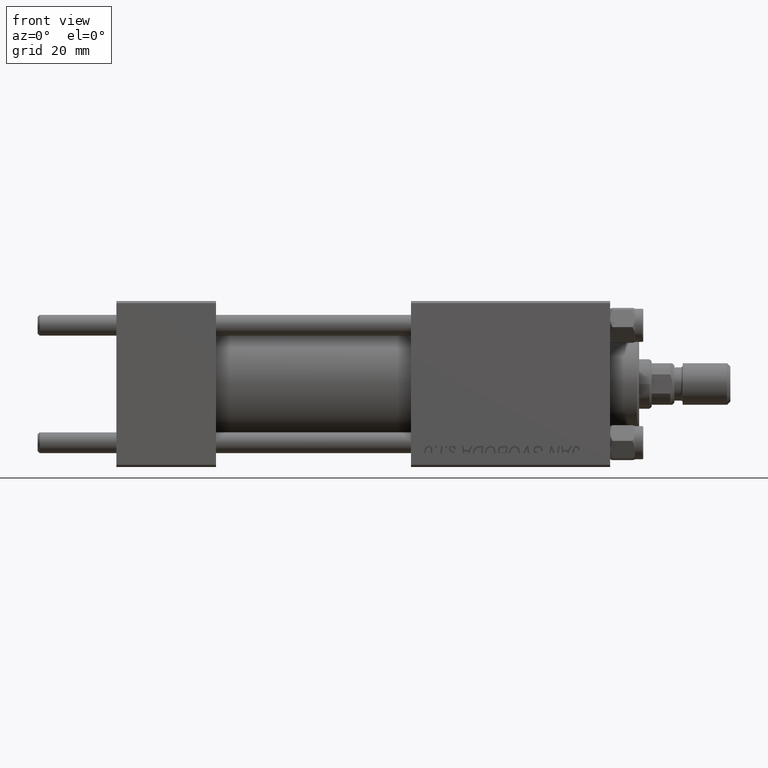
[diagram: clean part render]
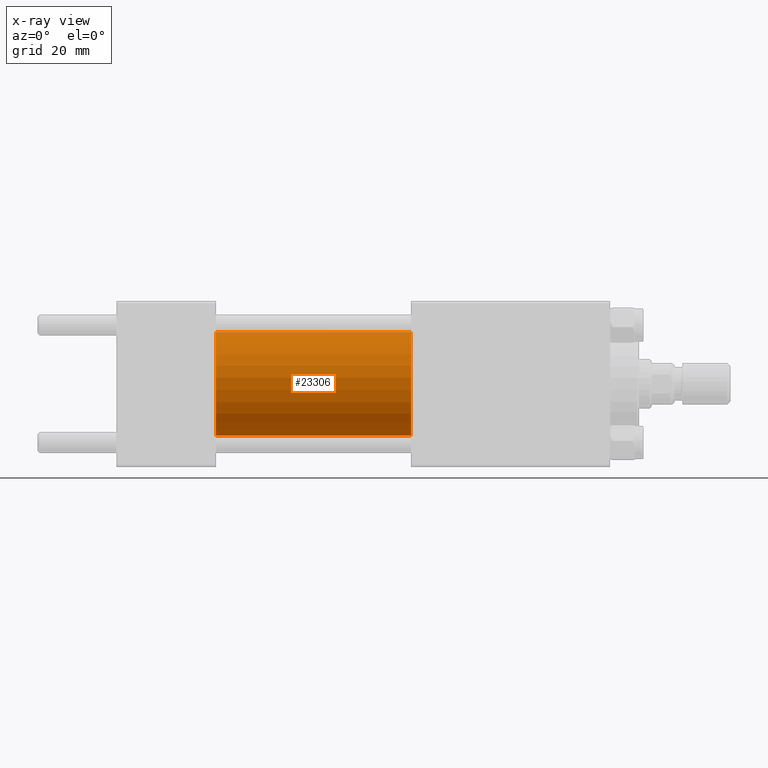
[diagram: x-ray — body ghosted, one internal face saturated and labeled with its STEP entity id]
A machine part, front view, then the same camera in x-ray: the body is ghosted and one INTERNAL B-rep face — a face not visible from any outside direction — is saturated and labeled: STEP entity #23306.
In plain terms, the highlighted cylindrical surface (partial cylindrical patch) has radius 12.5 mm, axis along (-1, -0, -0).
Its self-contained STEP definition (entity closure, byte-faithful):
#1 = ORIENTED_EDGE ( 'NONE', *, *, #14204, .T. ) ;
#2363 = DIRECTION ( 'NONE',  ( 0.000000000000000000, 0.000000000000000000, -1.000000000000000000 ) ) ;
#3590 = CARTESIAN_POINT ( 'NONE',  ( 71.00000000000001421, 1.530808498934191127E-15, -12.49999999999999645 ) ) ;
#6319 = CIRCLE ( 'NONE', #20940, 12.49999999999999645 ) ;
#7600 = LINE ( 'NONE', #23155, #33865 ) ;
#14204 = EDGE_CURVE ( 'NONE', #43999, #25536, #47696, .T. ) ;
#16356 = ORIENTED_EDGE ( 'NONE', *, *, #19715, .F. ) ;
#19571 = DIRECTION ( 'NONE',  ( -1.000000000000000000, -0.000000000000000000, -0.000000000000000000 ) ) ;
#19715 = EDGE_CURVE ( 'NONE', #34262, #23102, #7600, .T. ) ;
#20940 = AXIS2_PLACEMENT_3D ( 'NONE', #40914, #22324, #22069 ) ;
#22069 = DIRECTION ( 'NONE',  ( 0.000000000000000000, 0.000000000000000000, -1.000000000000000000 ) ) ;
#22324 = DIRECTION ( 'NONE',  ( 1.000000000000000000, 0.000000000000000000, 0.000000000000000000 ) ) ;
#22912 = CARTESIAN_POINT ( 'NONE',  ( 71.00000000000001421, 0.000000000000000000, 12.49999999999999645 ) ) ;
#23102 = VERTEX_POINT ( 'NONE', #30429 ) ;
#23155 = CARTESIAN_POINT ( 'NONE',  ( 71.00000000000001421, 0.000000000000000000, 12.49999999999999645 ) ) ;
#23306 = ADVANCED_FACE ( 'NONE', ( #23401 ), #38927, .F. ) ;
#23401 = FACE_OUTER_BOUND ( 'NONE', #47330, .T. ) ;
#23649 = DIRECTION ( 'NONE',  ( 0.000000000000000000, 0.000000000000000000, 1.000000000000000000 ) ) ;
#25536 = VERTEX_POINT ( 'NONE', #37962 ) ;
#27748 = ORIENTED_EDGE ( 'NONE', *, *, #28347, .T. ) ;
#28347 = EDGE_CURVE ( 'NONE', #34262, #43999, #50161, .T. ) ;
#28844 = DIRECTION ( 'NONE',  ( -1.000000000000000000, -0.000000000000000000, -0.000000000000000000 ) ) ;
#30429 = CARTESIAN_POINT ( 'NONE',  ( 24.00000000000000000, 0.000000000000000000, 12.49999999999999645 ) ) ;
#31698 = EDGE_CURVE ( 'NONE', #23102, #25536, #6319, .T. ) ;
#32707 = CARTESIAN_POINT ( 'NONE',  ( 71.00000000000001421, 0.000000000000000000, 0.000000000000000000 ) ) ;
#32871 = ORIENTED_EDGE ( 'NONE', *, *, #31698, .F. ) ;
#32927 = CARTESIAN_POINT ( 'NONE',  ( 71.00000000000001421, 1.530808498934191127E-15, -12.49999999999999645 ) ) ;
#33865 = VECTOR ( 'NONE', #38685, 1000.000000000000000 ) ;
#34262 = VERTEX_POINT ( 'NONE', #22912 ) ;
#37962 = CARTESIAN_POINT ( 'NONE',  ( 24.00000000000000000, 1.530808498934191127E-15, -12.49999999999999645 ) ) ;
#38591 = AXIS2_PLACEMENT_3D ( 'NONE', #47073, #19571, #23649 ) ;
#38685 = DIRECTION ( 'NONE',  ( -1.000000000000000000, -0.000000000000000000, -0.000000000000000000 ) ) ;
#38927 = CYLINDRICAL_SURFACE ( 'NONE', #38591, 12.49999999999999645 ) ;
#40914 = CARTESIAN_POINT ( 'NONE',  ( 24.00000000000000000, 0.000000000000000000, 0.000000000000000000 ) ) ;
#43999 = VERTEX_POINT ( 'NONE', #3590 ) ;
#46673 = VECTOR ( 'NONE', #28844, 1000.000000000000000 ) ;
#47073 = CARTESIAN_POINT ( 'NONE',  ( 71.00000000000001421, 0.000000000000000000, 0.000000000000000000 ) ) ;
#47330 = EDGE_LOOP ( 'NONE', ( #27748, #1, #32871, #16356 ) ) ;
#47696 = LINE ( 'NONE', #32927, #46673 ) ;
#49259 = DIRECTION ( 'NONE',  ( 1.000000000000000000, 0.000000000000000000, 0.000000000000000000 ) ) ;
#49315 = AXIS2_PLACEMENT_3D ( 'NONE', #32707, #49259, #2363 ) ;
#50161 = CIRCLE ( 'NONE', #49315, 12.49999999999999645 ) ;